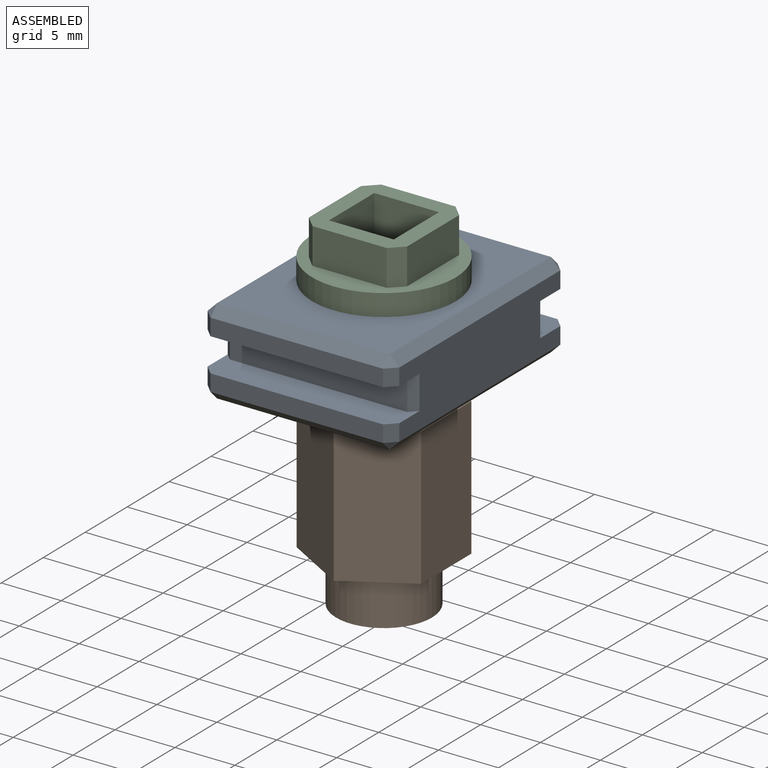
[diagram: assembled view]
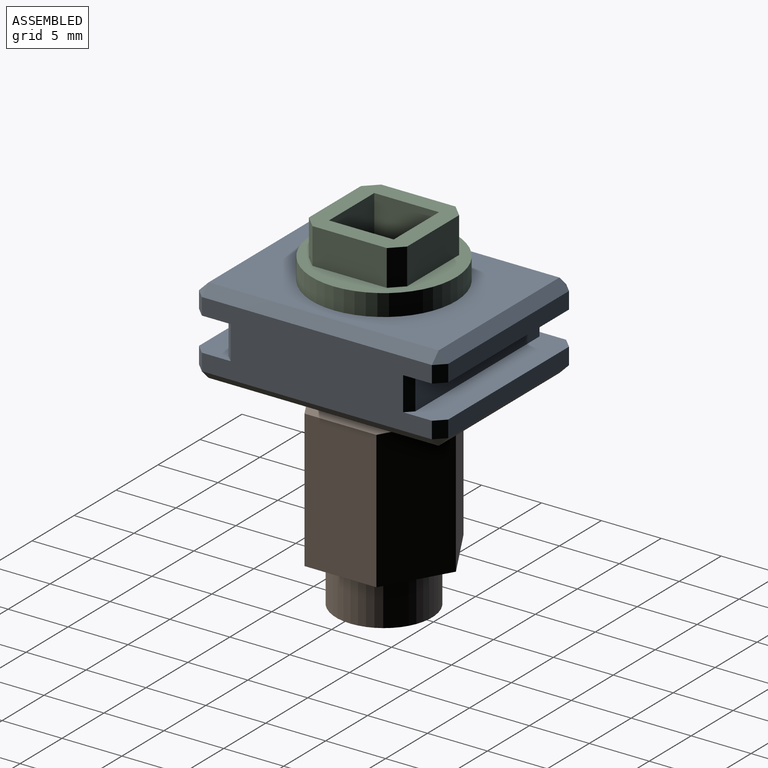
[diagram: assembled view, second angle]
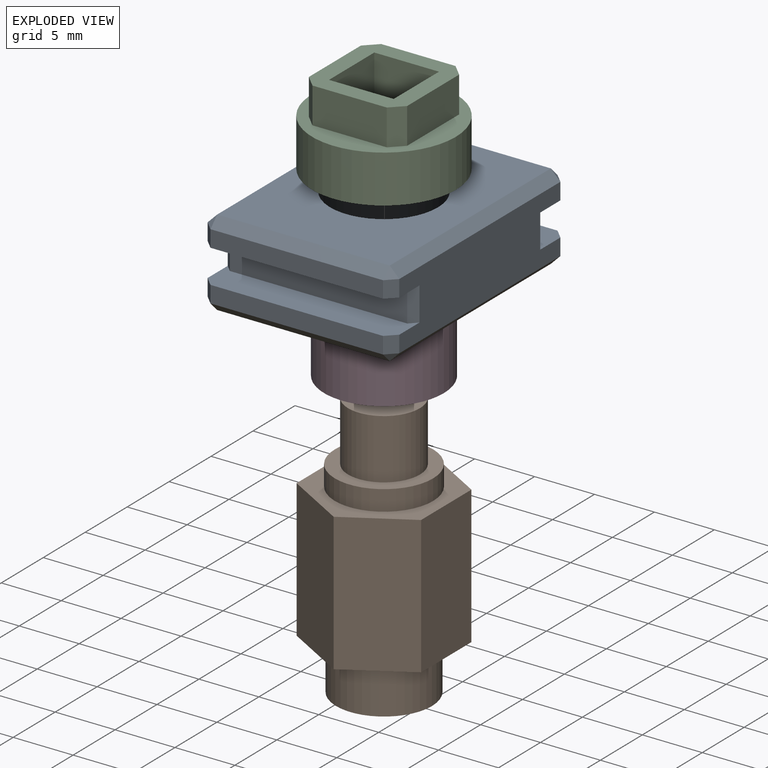
[diagram: exploded view]
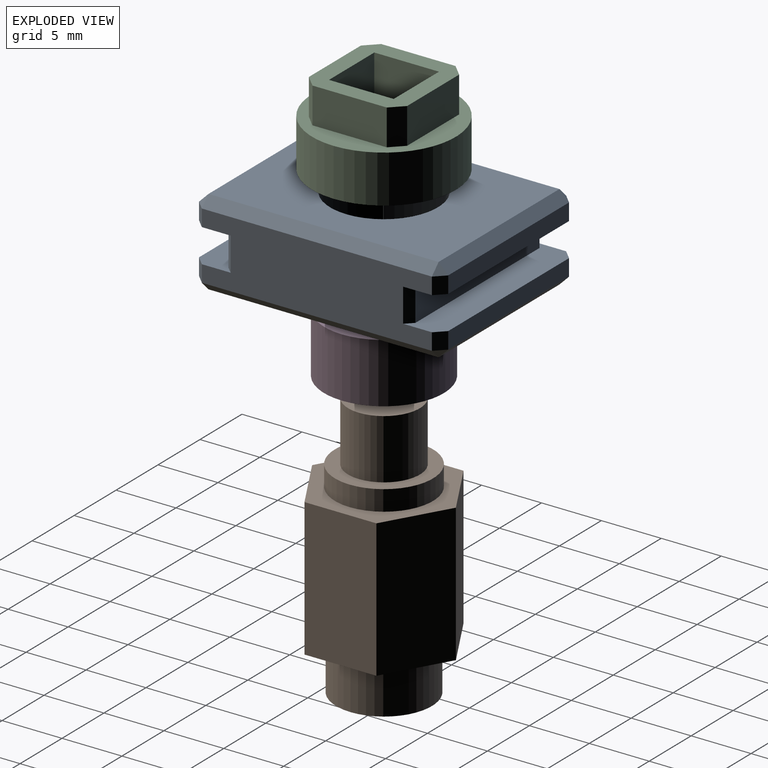
[diagram: exploded view, second angle]
ASSEMBLY  parts=4 mates=3
PART A: 43 faces, bbox 16x20.8x7.2 mm
  f0: plane 14.4x1.4mm, normal (0,-1,0), area 20.2mm2, adj f13,f31,f32,f33
  f1: plane 14.4x1.4mm, normal (0,1,0), area 20.2mm2, adj f11,f36,f39,f42
  f2: plane 19.2x5.6mm, normal (-1,0,0), area 94.1mm2, adj f9,f11,f12,f13,f15,f19,f20,f27
  f3: plane 19.2x5.6mm, normal (1,0,0), area 94.1mm2, adj f9,f11,f12,f13,f17,f23,f26,f29
  f4: plane 14.4x1.4mm, normal (0,-1,0), area 20.2mm2, adj f12,f15,f17,f18
  f5: cylinder r=4.5mm len=9mm, axis (0,0,-1), area 203.6mm2, adj f7,f8
  f6: plane 14.4x1.4mm, normal (0,1,0), area 20.2mm2, adj f9,f20,f24,f26
  f7: plane 19.2x14.4mm, normal (0,0,1), area 212.9mm2, adj f5,f18,f19,f23,f24
  f8: plane 19.2x14.4mm, normal (0,0,-1), area 212.9mm2, adj f5,f32,f37,f38,f42
  f9: plane 16x3.2mm, normal (0,0,-1), area 41.3mm2, adj f2,f3,f6,f10,f20,f26,f28,f29
  f10: plane 14.8x2.8mm, normal (0,1,0), area 41.4mm2, adj f9,f11,f28,f29
  f11: plane 16x3.2mm, normal (0,0,1), area 41.3mm2, adj f1,f2,f3,f10,f28,f29,f36,f39
  f12: plane 16x3.2mm, normal (0,0,-1), area 41.3mm2, adj f2,f3,f4,f14,f15,f17,f27,f30
  f13: plane 16x3.2mm, normal (0,0,1), area 41.3mm2, adj f0,f2,f3,f14,f27,f30,f31,f33
  f14: plane 14.8x2.8mm, normal (0,-1,0), area 41.4mm2, adj f12,f13,f27,f30
  f15: plane 1.4x0.8mm, normal (-0.71,-0.71,0), area 1.6mm2, adj f2,f4,f12,f16
  f16: plane 0.8x0.8mm, normal (-0.58,-0.58,0.58), area 0.6mm2, adj f15,f18,f19
  f17: plane 1.4x0.8mm, normal (0.71,-0.71,0), area 1.6mm2, adj f3,f4,f12,f21
  f18: plane 14.4x0.8mm, normal (0,-0.71,0.71), area 16.3mm2, adj f4,f7,f16,f21
  f19: plane 19.2x0.8mm, normal (-0.71,0,0.71), area 21.7mm2, adj f2,f7,f16,f22
  f20: plane 1.4x0.8mm, normal (-0.71,0.71,0), area 1.6mm2, adj f2,f6,f9,f22
  f21: plane 0.8x0.8mm, normal (0.58,-0.58,0.58), area 0.6mm2, adj f17,f18,f23
  f22: plane 0.8x0.8mm, normal (-0.58,0.58,0.58), area 0.6mm2, adj f19,f20,f24
  f23: plane 19.2x0.8mm, normal (0.71,0,0.71), area 21.7mm2, adj f3,f7,f21,f25
  f24: plane 14.4x0.8mm, normal (0,0.71,0.71), area 16.3mm2, adj f6,f7,f22,f25
  f25: plane 0.8x0.8mm, normal (0.58,0.58,0.58), area 0.6mm2, adj f23,f24,f26
  f26: plane 1.4x0.8mm, normal (0.71,0.71,0), area 1.6mm2, adj f3,f6,f9,f25
  f27: plane 2.8x0.6mm, normal (-0.71,-0.71,0), area 2.4mm2, adj f2,f12,f13,f14
  f28: plane 2.8x0.6mm, normal (-0.71,0.71,0), area 2.4mm2, adj f2,f9,f10,f11
  f29: plane 2.8x0.6mm, normal (0.71,0.71,0), area 2.4mm2, adj f3,f9,f10,f11
  f30: plane 2.8x0.6mm, normal (0.71,-0.71,0), area 2.4mm2, adj f3,f12,f13,f14
  f31: plane 1.4x0.8mm, normal (-0.71,-0.71,0), area 1.6mm2, adj f0,f2,f13,f34
  f32: plane 14.4x0.8mm, normal (0,-0.71,-0.71), area 16.3mm2, adj f0,f8,f34,f35
  f33: plane 1.4x0.8mm, normal (0.71,-0.71,0), area 1.6mm2, adj f0,f3,f13,f35
  f34: plane 0.8x0.8mm, normal (-0.58,-0.58,-0.58), area 0.6mm2, adj f31,f32,f37
  f35: plane 0.8x0.8mm, normal (0.58,-0.58,-0.58), area 0.6mm2, adj f32,f33,f38
  f36: plane 1.4x0.8mm, normal (-0.71,0.71,0), area 1.6mm2, adj f1,f2,f11,f40
  f37: plane 19.2x0.8mm, normal (-0.71,0,-0.71), area 21.7mm2, adj f2,f8,f34,f40
  f38: plane 19.2x0.8mm, normal (0.71,0,-0.71), area 21.7mm2, adj f3,f8,f35,f41
  f39: plane 1.4x0.8mm, normal (0.71,0.71,0), area 1.6mm2, adj f1,f3,f11,f41
  f40: plane 0.8x0.8mm, normal (-0.58,0.58,-0.58), area 0.6mm2, adj f36,f37,f42
  f41: plane 0.8x0.8mm, normal (0.58,0.58,-0.58), area 0.6mm2, adj f38,f39,f42
  f42: plane 14.4x0.8mm, normal (0,0.71,-0.71), area 16.3mm2, adj f1,f8,f40,f41
PART B: 17 faces, bbox 10.4x12x22.2 mm
  f0: plane 4x4mm, normal (0,0,1), area 6.4mm2, adj f1,f14
  f1: cylinder r=1.4mm len=18.2mm, axis (0,0,1), area 160.1mm2, adj f0,f5
  f2: cylinder r=4.1mm len=8.2mm, axis (0,0,1), area 43.8mm2, adj f3,f13
  f3: plane 8.2x8.2mm, normal (0,0,-1), area 24.5mm2, adj f2,f4
  f4: cylinder r=3mm len=6mm, axis (0,0,1), area 94.2mm2, adj f3,f5
  f5: plane 6x6mm, normal (0,0,-1), area 22.1mm2, adj f1,f4
  f6: plane 11.5x6mm, normal (1,0,0), area 69mm2, adj f7,f11,f12,f13
  f7: plane 11.5x5.2mm, normal (0.5,0.87,0), area 69mm2, adj f6,f8,f12,f13
  f8: plane 11.5x5.2mm, normal (-0.5,0.87,0), area 69mm2, adj f7,f9,f12,f13
  f9: plane 11.5x6mm, normal (-1,0,0), area 69mm2, adj f8,f10,f12,f13
  f10: plane 11.5x5.2mm, normal (-0.5,-0.87,0), area 69mm2, adj f9,f11,f12,f13
  f11: plane 11.5x5.2mm, normal (0.5,-0.87,0), area 69mm2, adj f6,f10,f12,f13
  f12: plane 12x10.39mm, normal (0,0,1), area 43.3mm2, adj f6,f7,f8,f9,f10,f11,f15
  f13: plane 12x10.39mm, normal (0,0,-1), area 40.7mm2, adj f2,f6,f7,f8,f9,f10,f11
  f14: cylinder r=2mm len=4mm, axis (0,0,-1), area 50.3mm2, adj f0,f16
  f15: cylinder r=4mm len=8mm, axis (0,0,-1), area 100.5mm2, adj f12,f16
  f16: plane 8x8mm, normal (0,0,1), area 37.7mm2, adj f14,f15
PART C: 16 faces, bbox 12x12x7 mm
  f0: cylinder r=6mm len=12mm, axis (0,0,-1), area 150.8mm2, adj f1,f2
  f1: plane 12x12mm, normal (0,0,1), area 47.9mm2, adj f0,f3,f4,f5,f10,f12,f13,f14
  f2: plane 12x12mm, normal (0,0,-1), area 83.9mm2, adj f0,f6,f7,f8,f9
  f3: plane 6.2x3mm, normal (0,1,0), area 18.6mm2, adj f1,f11,f14,f15
  f4: plane 6.2x3mm, normal (-1,0,0), area 18.6mm2, adj f1,f11,f12,f15
  f5: plane 6.2x3mm, normal (0,-1,0), area 18.6mm2, adj f1,f11,f12,f13
  f6: plane 7x5.4mm, normal (1,0,0), area 37.8mm2, adj f2,f7,f9,f11
  f7: plane 7x5.4mm, normal (0,-1,0), area 37.8mm2, adj f2,f6,f8,f11
  f8: plane 7x5.4mm, normal (-1,0,0), area 37.8mm2, adj f2,f7,f9,f11
  f9: plane 7x5.4mm, normal (0,1,0), area 37.8mm2, adj f2,f6,f8,f11
  f10: plane 6.2x3mm, normal (1,0,0), area 18.6mm2, adj f1,f11,f13,f14
  f11: plane 8.2x8.2mm, normal (0,0,1), area 36.1mm2, adj f3,f4,f5,f6,f7,f8,f9,f10
  f12: plane 3x1mm, normal (-0.71,-0.71,0), area 4.2mm2, adj f1,f4,f5,f11
  f13: plane 3x1mm, normal (0.71,-0.71,0), area 4.2mm2, adj f1,f5,f10,f11
  f14: plane 3x1mm, normal (0.71,0.71,0), area 4.2mm2, adj f1,f3,f10,f11
  f15: plane 3x1mm, normal (-0.71,0.71,0), area 4.2mm2, adj f1,f3,f4,f11
PART D: 8 faces, bbox 10.5x6.1x10.5 mm
  f0: cylinder r=2.5mm len=5mm, axis (0,-1,0), area 0.7mm2, adj f1,f2,f6,f7
  f1: bspline ~7.75x6.71mm, area 66.9mm2, adj f0,f3,f6,f7
  f2: bspline ~7.75x6.71mm, area 66.8mm2, adj f0,f3,f6,f7
  f3: bspline ~6.73x6.73mm, area 20.1mm2, adj f1,f2,f6,f7
  f4: plane 10x10mm, normal (0,-1,0), area 30.9mm2, adj f5,f7
  f5: cylinder r=5mm len=10mm, axis (0,-1,0), area 157.1mm2, adj f4,f6
  f6: plane 10.48x10.48mm, normal (0,1,0), area 51.6mm2, adj f0,f1,f2,f3,f5
  f7: cone r=2.16mm half-angle=66.7deg, axis (0,-1,0), area 22.7mm2, adj f0,f1,f2,f3,f4
PLACE A t=(-2.7,-0.52,-7.43)mm
PLACE B rot(axis=(-1,0,0),180deg) t=(-2.7,-0.52,-9.13)mm
PLACE C t=(-2.7,-0.52,-27.43)mm
PLACE D rot(axis=(1,0,0),90deg) t=(-2.7,-0.52,-7.43)mm
MATE fastened B.f2 <-> D.f0  axis (0,0,1) through (-2.7,-0.52,-7.43)mm
MATE fastened C.f0 <-> D.f0  axis (0,0,1) through (-2.7,-0.52,-2.43)mm
MATE fastened D.f0 <-> A.f5  axis (0,0,-1) through (-2.7,-0.52,-7.43)mm
